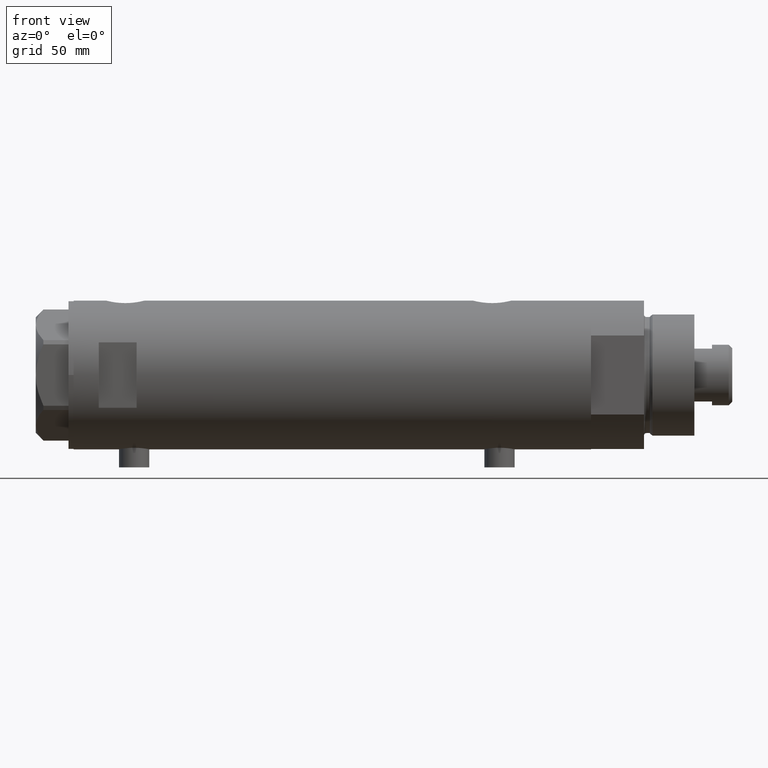
[diagram: clean part render]
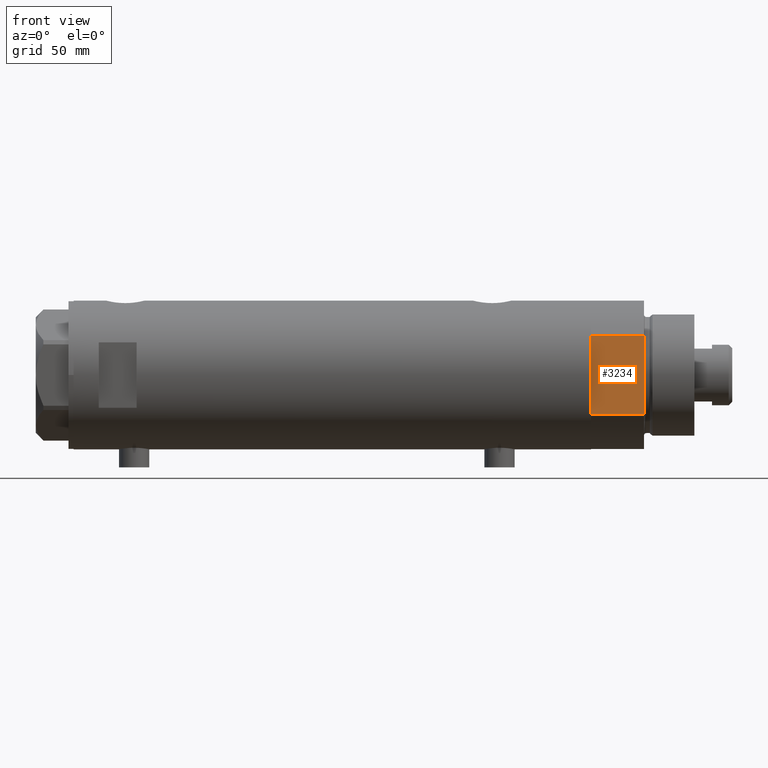
[diagram: same view with one face highlighted and labeled with its STEP entity id]
A machine part, front view. The second image highlights one B-rep face of the part: STEP entity #3234.
In plain terms, the highlighted planar face has unit normal (-0, 1, 0).
Its self-contained STEP definition (entity closure, byte-faithful):
#162 = EDGE_CURVE ( 'NONE', #2538, #1913, #3122, .T. ) ;
#219 = EDGE_CURVE ( 'NONE', #1288, #1913, #4035, .T. ) ;
#257 = VECTOR ( 'NONE', #1029, 1000.000000000000000 ) ;
#384 = VERTEX_POINT ( 'NONE', #1085 ) ;
#448 = FACE_OUTER_BOUND ( 'NONE', #1933, .T. ) ;
#450 = CARTESIAN_POINT ( 'NONE',  ( 15.66045976336583401, -25.00000000000000000, 0.000000000000000000 ) ) ;
#680 = VECTOR ( 'NONE', #1843, 1000.000000000000000 ) ;
#757 = VECTOR ( 'NONE', #3848, 1000.000000000000000 ) ;
#877 = EDGE_CURVE ( 'NONE', #384, #1288, #1164, .T. ) ;
#1029 = DIRECTION ( 'NONE',  ( -1.000000000000000000, -0.000000000000000000, -0.000000000000000000 ) ) ;
#1063 = LINE ( 'NONE', #3829, #1853 ) ;
#1085 = CARTESIAN_POINT ( 'NONE',  ( 15.66045976336583401, -25.00000000000000000, 0.000000000000000000 ) ) ;
#1089 = CARTESIAN_POINT ( 'NONE',  ( -15.66045976336582690, -25.00000000000000000, 0.000000000000000000 ) ) ;
#1164 = LINE ( 'NONE', #450, #680 ) ;
#1195 = CARTESIAN_POINT ( 'NONE',  ( -15.66045976336583401, -25.00000000000000000, 0.000000000000000000 ) ) ;
#1288 = VERTEX_POINT ( 'NONE', #3491 ) ;
#1323 = VECTOR ( 'NONE', #4279, 1000.000000000000000 ) ;
#1370 = CARTESIAN_POINT ( 'NONE',  ( -15.66045976336583401, -25.00000000000000000, 0.000000000000000000 ) ) ;
#1400 = VECTOR ( 'NONE', #1541, 1000.000000000000000 ) ;
#1408 = CARTESIAN_POINT ( 'NONE',  ( -15.66045976336583401, -25.00000000000000000, 0.000000000000000000 ) ) ;
#1435 = EDGE_CURVE ( 'NONE', #1881, #2107, #1063, .T. ) ;
#1541 = DIRECTION ( 'NONE',  ( -0.000000000000000000, -0.000000000000000000, 1.000000000000000000 ) ) ;
#1601 = EDGE_CURVE ( 'NONE', #2107, #2538, #1876, .T. ) ;
#1667 = ORIENTED_EDGE ( 'NONE', *, *, #877, .T. ) ;
#1841 = CARTESIAN_POINT ( 'NONE',  ( -15.66045976336583401, -25.00000000000000000, 0.000000000000000000 ) ) ;
#1843 = DIRECTION ( 'NONE',  ( -0.000000000000000000, -0.000000000000000000, 1.000000000000000000 ) ) ;
#1853 = VECTOR ( 'NONE', #2031, 1000.000000000000000 ) ;
#1867 = ORIENTED_EDGE ( 'NONE', *, *, #219, .T. ) ;
#1876 = LINE ( 'NONE', #1195, #757 ) ;
#1881 = VERTEX_POINT ( 'NONE', #3659 ) ;
#1913 = VERTEX_POINT ( 'NONE', #4000 ) ;
#1933 = EDGE_LOOP ( 'NONE', ( #1867, #2800, #3635, #2335, #3922, #1667 ) ) ;
#2031 = DIRECTION ( 'NONE',  ( -1.000000000000000000, -0.000000000000000000, -0.000000000000000000 ) ) ;
#2107 = VERTEX_POINT ( 'NONE', #3086 ) ;
#2335 = ORIENTED_EDGE ( 'NONE', *, *, #1435, .F. ) ;
#2538 = VERTEX_POINT ( 'NONE', #1089 ) ;
#2800 = ORIENTED_EDGE ( 'NONE', *, *, #162, .F. ) ;
#3086 = CARTESIAN_POINT ( 'NONE',  ( -7.141428428542853091, -25.00000000000000000, 0.000000000000000000 ) ) ;
#3122 = LINE ( 'NONE', #1408, #1400 ) ;
#3234 = ADVANCED_FACE ( 'NONE', ( #448 ), #4147, .F. ) ;
#3477 = DIRECTION ( 'NONE',  ( 0.000000000000000000, -0.000000000000000000, 1.000000000000000000 ) ) ;
#3491 = CARTESIAN_POINT ( 'NONE',  ( 15.66045976336583045, -25.00000000000000000, 21.00000000000000355 ) ) ;
#3522 = EDGE_CURVE ( 'NONE', #384, #1881, #3700, .T. ) ;
#3584 = CARTESIAN_POINT ( 'NONE',  ( -15.66045976336583401, -25.00000000000000000, 21.00000000000000000 ) ) ;
#3635 = ORIENTED_EDGE ( 'NONE', *, *, #1601, .F. ) ;
#3659 = CARTESIAN_POINT ( 'NONE',  ( 7.141428428542853091, -25.00000000000000000, 0.000000000000000000 ) ) ;
#3700 = LINE ( 'NONE', #1370, #257 ) ;
#3829 = CARTESIAN_POINT ( 'NONE',  ( -15.66045976336583401, -25.00000000000000000, 0.000000000000000000 ) ) ;
#3848 = DIRECTION ( 'NONE',  ( -1.000000000000000000, -0.000000000000000000, -0.000000000000000000 ) ) ;
#3880 = AXIS2_PLACEMENT_3D ( 'NONE', #1841, #4425, #3477 ) ;
#3922 = ORIENTED_EDGE ( 'NONE', *, *, #3522, .F. ) ;
#4000 = CARTESIAN_POINT ( 'NONE',  ( -15.66045976336583045, -24.99999999999999645, 20.99999999999999645 ) ) ;
#4035 = LINE ( 'NONE', #3584, #1323 ) ;
#4147 = PLANE ( 'NONE',  #3880 ) ;
#4279 = DIRECTION ( 'NONE',  ( -1.000000000000000000, -0.000000000000000000, -0.000000000000000000 ) ) ;
#4425 = DIRECTION ( 'NONE',  ( -0.000000000000000000, 1.000000000000000000, 0.000000000000000000 ) ) ;